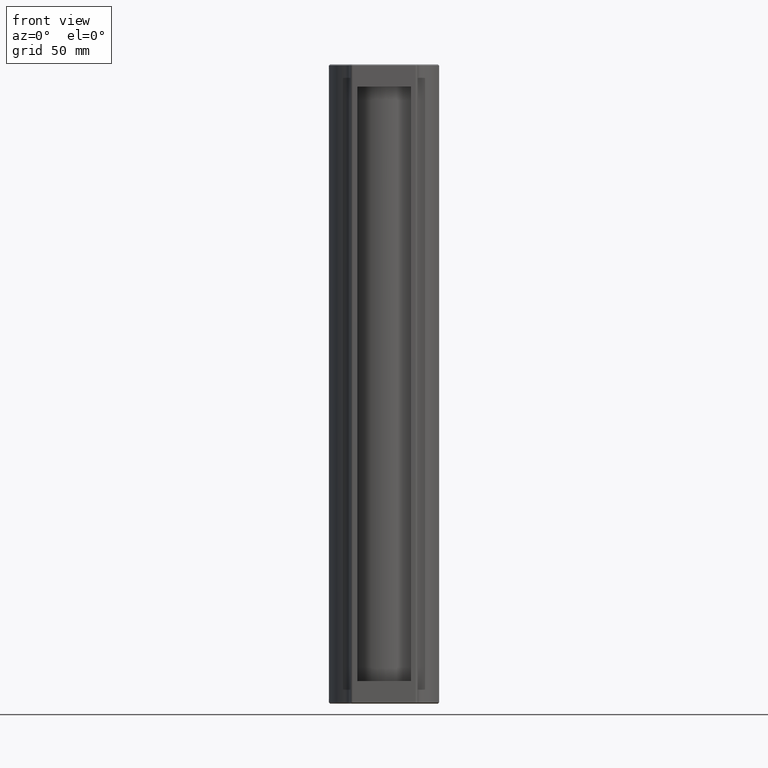
[diagram: clean part render]
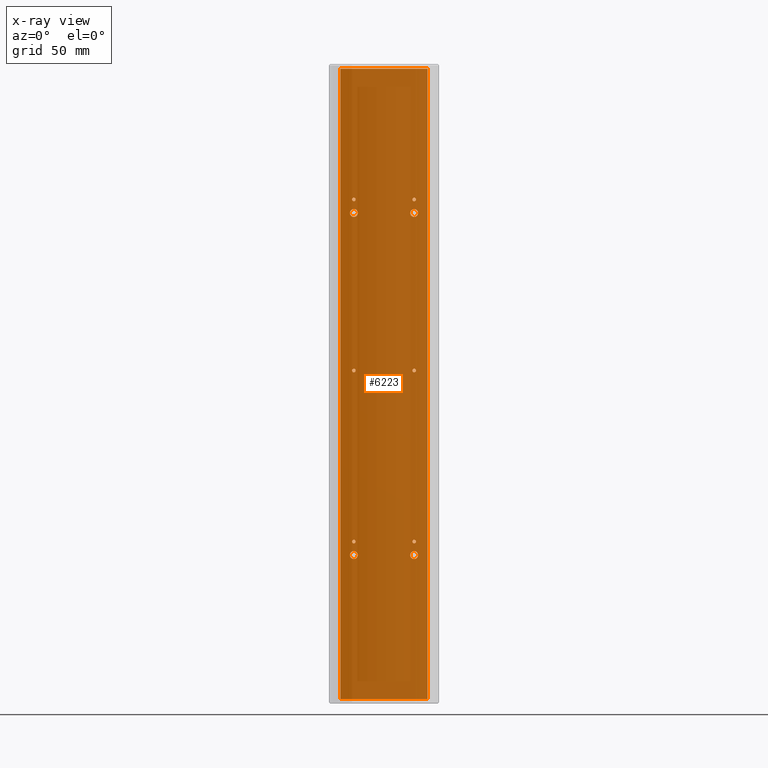
[diagram: x-ray — body ghosted, one internal face saturated and labeled with its STEP entity id]
A machine part, front view, then the same camera in x-ray: the body is ghosted and one INTERNAL B-rep face — a face not visible from any outside direction — is saturated and labeled: STEP entity #6223.
In plain terms, the highlighted planar face has unit normal (-0, 1, 0).
Its self-contained STEP definition (entity closure, byte-faithful):
#141 = FACE_BOUND ( 'NONE', #91753, .T. ) ;
#426 = CARTESIAN_POINT ( 'NONE',  ( -50.96201180637547900, -2.995475796930338500, -70.85000000000000900 ) ) ;
#571 = DIRECTION ( 'NONE',  ( 0.0000000000000000000, 0.0000000000000000000, -1.000000000000000000 ) ) ;
#1622 = LINE ( 'NONE', #73058, #81939 ) ;
#2283 = CARTESIAN_POINT ( 'NONE',  ( -24.16201180637542800, -2.995475796930334900, -70.04999999999999700 ) ) ;
#2531 = CARTESIAN_POINT ( 'NONE',  ( -24.16201180637542800, -2.995475796930334900, 81.94999999999998900 ) ) ;
#2987 = AXIS2_PLACEMENT_3D ( 'NONE', #2283, #10933, #571 ) ;
#3924 = DIRECTION ( 'NONE',  ( -0.0000000000000000000, -1.000000000000000000, -0.0000000000000000000 ) ) ;
#4747 = VERTEX_POINT ( 'NONE', #59614 ) ;
#4816 = VECTOR ( 'NONE', #17768, 1000.000000000000000 ) ;
#5816 = DIRECTION ( 'NONE',  ( -0.0000000000000000000, -1.000000000000000000, -0.0000000000000000000 ) ) ;
#6223 = ADVANCED_FACE ( 'NONE', ( #61939, #141, #102123, #71159, #35761, #88107, #9443, #81956, #105256, #78835, #10895 ), #71810, .F. ) ;
#6225 = AXIS2_PLACEMENT_3D ( 'NONE', #59053, #78847, #19862 ) ;
#7420 = EDGE_CURVE ( 'NONE', #9706, #50380, #57792, .T. ) ;
#7870 = DIRECTION ( 'NONE',  ( 0.0000000000000000000, 0.0000000000000000000, -1.000000000000000000 ) ) ;
#8218 = CIRCLE ( 'NONE', #26303, 0.7999999999999951600 ) ;
#8937 = CARTESIAN_POINT ( 'NONE',  ( -24.16201180637542800, -2.995475796930334900, -69.25000000000000000 ) ) ;
#8946 = DIRECTION ( 'NONE',  ( 1.000000000000000000, 1.269309860470834700E-016, -0.0000000000000000000 ) ) ;
#9135 = CIRCLE ( 'NONE', #43001, 0.7999999999999942700 ) ;
#9281 = DIRECTION ( 'NONE',  ( -0.0000000000000000000, -1.000000000000000000, -0.0000000000000000000 ) ) ;
#9443 = FACE_BOUND ( 'NONE', #30691, .T. ) ;
#9476 = VERTEX_POINT ( 'NONE', #94864 ) ;
#9706 = VERTEX_POINT ( 'NONE', #101298 ) ;
#9708 = CARTESIAN_POINT ( 'NONE',  ( -24.16201180637542800, -2.995475796930334900, 5.949999999999994800 ) ) ;
#10033 = AXIS2_PLACEMENT_3D ( 'NONE', #33296, #82794, #23759 ) ;
#10661 = VERTEX_POINT ( 'NONE', #110847 ) ;
#10895 = FACE_BOUND ( 'NONE', #29591, .T. ) ;
#10933 = DIRECTION ( 'NONE',  ( -0.0000000000000000000, -1.000000000000000000, -0.0000000000000000000 ) ) ;
#11603 = CARTESIAN_POINT ( 'NONE',  ( -50.96201180637547900, -2.995475796930338500, 82.74999999999997200 ) ) ;
#11947 = DIRECTION ( 'NONE',  ( -1.000000000000000000, -1.269309860470834700E-016, 0.0000000000000000000 ) ) ;
#13668 = LINE ( 'NONE', #58140, #78411 ) ;
#15491 = VERTEX_POINT ( 'NONE', #97986 ) ;
#15527 = CARTESIAN_POINT ( 'NONE',  ( -18.16201180637543900, -2.995475796930334900, -140.0000000000000000 ) ) ;
#15648 = LINE ( 'NONE', #56943, #4816 ) ;
#16748 = EDGE_CURVE ( 'NONE', #10661, #118622, #65332, .T. ) ;
#17219 = CARTESIAN_POINT ( 'NONE',  ( -24.16201180637543200, -2.995475796930334900, 77.69999999999997400 ) ) ;
#17747 = CARTESIAN_POINT ( 'NONE',  ( -24.16201180637543200, -2.995475796930334900, 75.94999999999998900 ) ) ;
#17768 = DIRECTION ( 'NONE',  ( -0.0000000000000000000, -0.0000000000000000000, -1.000000000000000000 ) ) ;
#19017 = CIRCLE ( 'NONE', #101379, 1.749999999999987600 ) ;
#19788 = EDGE_CURVE ( 'NONE', #35998, #15491, #91333, .T. ) ;
#19862 = DIRECTION ( 'NONE',  ( 0.0000000000000000000, 0.0000000000000000000, -1.000000000000000000 ) ) ;
#19983 = EDGE_CURVE ( 'NONE', #64183, #9476, #74199, .T. ) ;
#20051 = CARTESIAN_POINT ( 'NONE',  ( -24.16201180637542800, -2.995475796930334900, -76.05000000000001100 ) ) ;
#20164 = VERTEX_POINT ( 'NONE', #25806 ) ;
#20448 = DIRECTION ( 'NONE',  ( 0.0000000000000000000, 0.0000000000000000000, -1.000000000000000000 ) ) ;
#20850 = CIRCLE ( 'NONE', #25945, 0.7999999999999951600 ) ;
#21542 = CIRCLE ( 'NONE', #128278, 1.749999999999987600 ) ;
#23365 = CARTESIAN_POINT ( 'NONE',  ( -24.16201180637542800, -2.995475796930334900, 5.150000000000001200 ) ) ;
#23479 = ORIENTED_EDGE ( 'NONE', *, *, #107801, .F. ) ;
#23759 = DIRECTION ( 'NONE',  ( 0.0000000000000000000, 0.0000000000000000000, -1.000000000000000000 ) ) ;
#24720 = ORIENTED_EDGE ( 'NONE', *, *, #74832, .F. ) ;
#25806 = CARTESIAN_POINT ( 'NONE',  ( -50.96201180637545700, -2.995475796930338500, -77.80000000000001100 ) ) ;
#25807 = EDGE_CURVE ( 'NONE', #99699, #101210, #94220, .T. ) ;
#25945 = AXIS2_PLACEMENT_3D ( 'NONE', #111582, #33438, #63120 ) ;
#26065 = EDGE_CURVE ( 'NONE', #50634, #49053, #1622, .T. ) ;
#26303 = AXIS2_PLACEMENT_3D ( 'NONE', #49900, #49474, #89956 ) ;
#27225 = DIRECTION ( 'NONE',  ( -0.0000000000000000000, -1.000000000000000000, -0.0000000000000000000 ) ) ;
#28115 = DIRECTION ( 'NONE',  ( 0.0000000000000000000, 0.0000000000000000000, -1.000000000000000000 ) ) ;
#28276 = CARTESIAN_POINT ( 'NONE',  ( -50.96201180637547900, -2.995475796930338500, 5.949999999999985100 ) ) ;
#29431 = DIRECTION ( 'NONE',  ( -0.0000000000000000000, -1.000000000000000000, -0.0000000000000000000 ) ) ;
#29591 = EDGE_LOOP ( 'NONE', ( #95029, #24720 ) ) ;
#29673 = CARTESIAN_POINT ( 'NONE',  ( -24.16201180637542800, -2.995475796930334900, 6.749999999999989300 ) ) ;
#30169 = EDGE_CURVE ( 'NONE', #103465, #117454, #43980, .T. ) ;
#30691 = EDGE_LOOP ( 'NONE', ( #48873, #96576 ) ) ;
#31193 = EDGE_LOOP ( 'NONE', ( #92501, #96795 ) ) ;
#31534 = VERTEX_POINT ( 'NONE', #52583 ) ;
#32886 = DIRECTION ( 'NONE',  ( 0.0000000000000000000, 0.0000000000000000000, -1.000000000000000000 ) ) ;
#33296 = CARTESIAN_POINT ( 'NONE',  ( -24.16201180637542800, -2.995475796930334900, 5.949999999999994800 ) ) ;
#33438 = DIRECTION ( 'NONE',  ( -0.0000000000000000000, -1.000000000000000000, -0.0000000000000000000 ) ) ;
#33679 = ORIENTED_EDGE ( 'NONE', *, *, #102572, .F. ) ;
#33739 = DIRECTION ( 'NONE',  ( 0.0000000000000000000, 0.0000000000000000000, -1.000000000000000000 ) ) ;
#34565 = CARTESIAN_POINT ( 'NONE',  ( -56.96201180637545000, -2.995475796930337600, -140.0000000000000000 ) ) ;
#34783 = DIRECTION ( 'NONE',  ( 0.0000000000000000000, 0.0000000000000000000, -1.000000000000000000 ) ) ;
#34985 = ORIENTED_EDGE ( 'NONE', *, *, #109000, .F. ) ;
#35761 = FACE_BOUND ( 'NONE', #67240, .T. ) ;
#35782 = DIRECTION ( 'NONE',  ( 0.0000000000000000000, 0.0000000000000000000, -1.000000000000000000 ) ) ;
#35998 = VERTEX_POINT ( 'NONE', #17219 ) ;
#36043 = CIRCLE ( 'NONE', #10033, 0.7999999999999942700 ) ;
#36105 = DIRECTION ( 'NONE',  ( -0.0000000000000000000, -1.000000000000000000, -0.0000000000000000000 ) ) ;
#36354 = CARTESIAN_POINT ( 'NONE',  ( -24.16201180637542800, -2.995475796930334900, 81.94999999999998900 ) ) ;
#37170 = CIRCLE ( 'NONE', #120774, 0.7999999999999951600 ) ;
#37452 = ORIENTED_EDGE ( 'NONE', *, *, #30169, .F. ) ;
#38512 = ORIENTED_EDGE ( 'NONE', *, *, #123663, .F. ) ;
#39091 = DIRECTION ( 'NONE',  ( 0.0000000000000000000, 0.0000000000000000000, -1.000000000000000000 ) ) ;
#40759 = CARTESIAN_POINT ( 'NONE',  ( -24.16201180637542800, -2.995475796930334900, -74.30000000000002600 ) ) ;
#41311 = DIRECTION ( 'NONE',  ( -1.269309860470834700E-016, 1.000000000000000000, 0.0000000000000000000 ) ) ;
#43001 = AXIS2_PLACEMENT_3D ( 'NONE', #60690, #127270, #80031 ) ;
#43234 = AXIS2_PLACEMENT_3D ( 'NONE', #119916, #41311, #11947 ) ;
#43980 = CIRCLE ( 'NONE', #99062, 1.749999999999987600 ) ;
#46278 = EDGE_CURVE ( 'NONE', #118622, #10661, #19017, .T. ) ;
#46792 = EDGE_CURVE ( 'NONE', #31534, #95259, #55781, .T. ) ;
#47120 = CARTESIAN_POINT ( 'NONE',  ( -50.96201180637545700, -2.995475796930338500, 75.94999999999997400 ) ) ;
#48873 = ORIENTED_EDGE ( 'NONE', *, *, #74646, .F. ) ;
#48996 = EDGE_CURVE ( 'NONE', #103558, #88219, #36043, .T. ) ;
#49053 = VERTEX_POINT ( 'NONE', #34565 ) ;
#49474 = DIRECTION ( 'NONE',  ( -0.0000000000000000000, -1.000000000000000000, -0.0000000000000000000 ) ) ;
#49900 = CARTESIAN_POINT ( 'NONE',  ( -50.96201180637547900, -2.995475796930338500, 81.94999999999997400 ) ) ;
#50341 = EDGE_CURVE ( 'NONE', #71053, #76662, #90801, .T. ) ;
#50380 = VERTEX_POINT ( 'NONE', #426 ) ;
#50413 = DIRECTION ( 'NONE',  ( -0.0000000000000000000, -1.000000000000000000, -0.0000000000000000000 ) ) ;
#50456 = DIRECTION ( 'NONE',  ( 0.0000000000000000000, 0.0000000000000000000, -1.000000000000000000 ) ) ;
#50634 = VERTEX_POINT ( 'NONE', #15527 ) ;
#51334 = CIRCLE ( 'NONE', #2987, 0.7999999999999951600 ) ;
#51468 = VERTEX_POINT ( 'NONE', #110701 ) ;
#52155 = CARTESIAN_POINT ( 'NONE',  ( -18.16201180637543900, -2.995475796930333600, 140.0000000000000000 ) ) ;
#52583 = CARTESIAN_POINT ( 'NONE',  ( -50.96201180637547900, -2.995475796930338500, 6.749999999999978700 ) ) ;
#52933 = EDGE_LOOP ( 'NONE', ( #37452, #60568 ) ) ;
#53866 = AXIS2_PLACEMENT_3D ( 'NONE', #47120, #66141, #7870 ) ;
#55581 = CARTESIAN_POINT ( 'NONE',  ( -50.96201180637547900, -2.995475796930338500, -70.05000000000001100 ) ) ;
#55781 = CIRCLE ( 'NONE', #77441, 0.7999999999999942700 ) ;
#56137 = DIRECTION ( 'NONE',  ( 0.0000000000000000000, 0.0000000000000000000, -1.000000000000000000 ) ) ;
#56753 = ORIENTED_EDGE ( 'NONE', *, *, #85835, .F. ) ;
#56943 = CARTESIAN_POINT ( 'NONE',  ( -18.16201180637543900, -2.995475796930332700, 140.0000000000000000 ) ) ;
#57792 = CIRCLE ( 'NONE', #87142, 0.7999999999999951600 ) ;
#58140 = CARTESIAN_POINT ( 'NONE',  ( -56.96201180637545000, -2.995475796930337600, 140.0000000000000000 ) ) ;
#59053 = CARTESIAN_POINT ( 'NONE',  ( -24.16201180637543200, -2.995475796930334900, 75.94999999999998900 ) ) ;
#59614 = CARTESIAN_POINT ( 'NONE',  ( -24.16201180637542800, -2.995475796930334900, 82.74999999999998600 ) ) ;
#60017 = ORIENTED_EDGE ( 'NONE', *, *, #19788, .F. ) ;
#60027 = VERTEX_POINT ( 'NONE', #100717 ) ;
#60568 = ORIENTED_EDGE ( 'NONE', *, *, #71486, .F. ) ;
#60690 = CARTESIAN_POINT ( 'NONE',  ( -50.96201180637547900, -2.995475796930338500, 5.949999999999985100 ) ) ;
#61814 = CIRCLE ( 'NONE', #70409, 1.749999999999987600 ) ;
#61939 = FACE_OUTER_BOUND ( 'NONE', #69773, .T. ) ;
#62987 = CARTESIAN_POINT ( 'NONE',  ( -50.96201180637545700, -2.995475796930338500, -76.05000000000002600 ) ) ;
#63120 = DIRECTION ( 'NONE',  ( 0.0000000000000000000, 0.0000000000000000000, -1.000000000000000000 ) ) ;
#63417 = DIRECTION ( 'NONE',  ( -0.0000000000000000000, -1.000000000000000000, -0.0000000000000000000 ) ) ;
#64183 = VERTEX_POINT ( 'NONE', #11603 ) ;
#64920 = VECTOR ( 'NONE', #8946, 1000.000000000000000 ) ;
#65332 = CIRCLE ( 'NONE', #53866, 1.749999999999987600 ) ;
#66141 = DIRECTION ( 'NONE',  ( -0.0000000000000000000, -1.000000000000000000, -0.0000000000000000000 ) ) ;
#66707 = CIRCLE ( 'NONE', #127132, 1.749999999999987600 ) ;
#67153 = EDGE_LOOP ( 'NONE', ( #86220, #84835 ) ) ;
#67240 = EDGE_LOOP ( 'NONE', ( #33679, #60017 ) ) ;
#69560 = AXIS2_PLACEMENT_3D ( 'NONE', #9708, #9281, #39091 ) ;
#69773 = EDGE_LOOP ( 'NONE', ( #87342, #34985, #94712, #38512 ) ) ;
#70246 = EDGE_CURVE ( 'NONE', #9476, #64183, #8218, .T. ) ;
#70409 = AXIS2_PLACEMENT_3D ( 'NONE', #73260, #3924, #33739 ) ;
#71053 = VERTEX_POINT ( 'NONE', #8937 ) ;
#71159 = FACE_BOUND ( 'NONE', #67153, .T. ) ;
#71230 = CIRCLE ( 'NONE', #6225, 1.749999999999987600 ) ;
#71486 = EDGE_CURVE ( 'NONE', #117454, #103465, #21542, .T. ) ;
#71810 = PLANE ( 'NONE',  #43234 ) ;
#73058 = CARTESIAN_POINT ( 'NONE',  ( -37.56201180637544500, -2.995475796930337600, -140.0000000000000000 ) ) ;
#73260 = CARTESIAN_POINT ( 'NONE',  ( -50.96201180637545700, -2.995475796930338500, -76.05000000000002600 ) ) ;
#74199 = CIRCLE ( 'NONE', #108205, 0.7999999999999951600 ) ;
#74488 = DIRECTION ( 'NONE',  ( -0.0000000000000000000, -1.000000000000000000, -0.0000000000000000000 ) ) ;
#74646 = EDGE_CURVE ( 'NONE', #76662, #71053, #51334, .T. ) ;
#74832 = EDGE_CURVE ( 'NONE', #4747, #51468, #88140, .T. ) ;
#76222 = CARTESIAN_POINT ( 'NONE',  ( -56.96201180637545000, -2.995475796930337600, 140.0000000000000000 ) ) ;
#76662 = VERTEX_POINT ( 'NONE', #113019 ) ;
#77441 = AXIS2_PLACEMENT_3D ( 'NONE', #28276, #36105, #105174 ) ;
#78411 = VECTOR ( 'NONE', #87838, 1000.000000000000000 ) ;
#78835 = FACE_BOUND ( 'NONE', #123334, .T. ) ;
#78847 = DIRECTION ( 'NONE',  ( -0.0000000000000000000, -1.000000000000000000, -0.0000000000000000000 ) ) ;
#78880 = DIRECTION ( 'NONE',  ( -0.0000000000000000000, -1.000000000000000000, -0.0000000000000000000 ) ) ;
#78962 = CARTESIAN_POINT ( 'NONE',  ( -24.16201180637542800, -2.995475796930334900, -77.79999999999999700 ) ) ;
#80031 = DIRECTION ( 'NONE',  ( 0.0000000000000000000, 0.0000000000000000000, -1.000000000000000000 ) ) ;
#80593 = ORIENTED_EDGE ( 'NONE', *, *, #70246, .F. ) ;
#80596 = AXIS2_PLACEMENT_3D ( 'NONE', #36354, #117027, #56137 ) ;
#81446 = DIRECTION ( 'NONE',  ( 0.0000000000000000000, 0.0000000000000000000, -1.000000000000000000 ) ) ;
#81479 = EDGE_CURVE ( 'NONE', #50380, #9706, #20850, .T. ) ;
#81760 = DIRECTION ( 'NONE',  ( -1.000000000000000000, -0.0000000000000000000, -0.0000000000000000000 ) ) ;
#81859 = DIRECTION ( 'NONE',  ( -0.0000000000000000000, -1.000000000000000000, -0.0000000000000000000 ) ) ;
#81939 = VECTOR ( 'NONE', #81760, 1000.000000000000000 ) ;
#81956 = FACE_BOUND ( 'NONE', #31193, .T. ) ;
#82794 = DIRECTION ( 'NONE',  ( -0.0000000000000000000, -1.000000000000000000, -0.0000000000000000000 ) ) ;
#84835 = ORIENTED_EDGE ( 'NONE', *, *, #16748, .F. ) ;
#85835 = EDGE_CURVE ( 'NONE', #20164, #60027, #61814, .T. ) ;
#86220 = ORIENTED_EDGE ( 'NONE', *, *, #46278, .F. ) ;
#87142 = AXIS2_PLACEMENT_3D ( 'NONE', #55581, #74488, #35782 ) ;
#87342 = ORIENTED_EDGE ( 'NONE', *, *, #25807, .F. ) ;
#87838 = DIRECTION ( 'NONE',  ( 0.0000000000000000000, 0.0000000000000000000, 1.000000000000000000 ) ) ;
#88107 = FACE_BOUND ( 'NONE', #111047, .T. ) ;
#88140 = CIRCLE ( 'NONE', #80596, 0.7999999999999951600 ) ;
#88219 = VERTEX_POINT ( 'NONE', #29673 ) ;
#88250 = CARTESIAN_POINT ( 'NONE',  ( -37.56201180637544500, -2.995475796930334900, 140.0000000000000000 ) ) ;
#88372 = CARTESIAN_POINT ( 'NONE',  ( -24.16201180637542800, -2.995475796930334900, -70.04999999999999700 ) ) ;
#88793 = AXIS2_PLACEMENT_3D ( 'NONE', #88372, #29431, #28115 ) ;
#89591 = CARTESIAN_POINT ( 'NONE',  ( -50.96201180637547900, -2.995475796930338500, 81.94999999999997400 ) ) ;
#89956 = DIRECTION ( 'NONE',  ( 0.0000000000000000000, 0.0000000000000000000, -1.000000000000000000 ) ) ;
#89981 = ORIENTED_EDGE ( 'NONE', *, *, #46792, .F. ) ;
#90801 = CIRCLE ( 'NONE', #88793, 0.7999999999999951600 ) ;
#91333 = CIRCLE ( 'NONE', #110700, 1.749999999999987600 ) ;
#91753 = EDGE_LOOP ( 'NONE', ( #56753, #23479 ) ) ;
#92501 = ORIENTED_EDGE ( 'NONE', *, *, #48996, .F. ) ;
#94220 = LINE ( 'NONE', #88250, #64920 ) ;
#94712 = ORIENTED_EDGE ( 'NONE', *, *, #26065, .F. ) ;
#94864 = CARTESIAN_POINT ( 'NONE',  ( -50.96201180637547900, -2.995475796930338500, 81.14999999999999100 ) ) ;
#95029 = ORIENTED_EDGE ( 'NONE', *, *, #124033, .F. ) ;
#95259 = VERTEX_POINT ( 'NONE', #122166 ) ;
#96576 = ORIENTED_EDGE ( 'NONE', *, *, #50341, .F. ) ;
#96795 = ORIENTED_EDGE ( 'NONE', *, *, #120090, .F. ) ;
#97986 = CARTESIAN_POINT ( 'NONE',  ( -24.16201180637543200, -2.995475796930334900, 74.20000000000000300 ) ) ;
#99062 = AXIS2_PLACEMENT_3D ( 'NONE', #105125, #5816, #34783 ) ;
#99699 = VERTEX_POINT ( 'NONE', #76222 ) ;
#100717 = CARTESIAN_POINT ( 'NONE',  ( -50.96201180637545700, -2.995475796930338500, -74.30000000000004000 ) ) ;
#100918 = DIRECTION ( 'NONE',  ( 0.0000000000000000000, 0.0000000000000000000, -1.000000000000000000 ) ) ;
#101210 = VERTEX_POINT ( 'NONE', #52155 ) ;
#101298 = CARTESIAN_POINT ( 'NONE',  ( -50.96201180637547900, -2.995475796930338500, -69.25000000000001400 ) ) ;
#101379 = AXIS2_PLACEMENT_3D ( 'NONE', #118303, #78880, #50456 ) ;
#101675 = CARTESIAN_POINT ( 'NONE',  ( -50.96201180637545700, -2.995475796930338500, 74.19999999999998900 ) ) ;
#102123 = FACE_BOUND ( 'NONE', #52933, .T. ) ;
#102236 = ORIENTED_EDGE ( 'NONE', *, *, #19983, .F. ) ;
#102572 = EDGE_CURVE ( 'NONE', #15491, #35998, #71230, .T. ) ;
#103465 = VERTEX_POINT ( 'NONE', #78962 ) ;
#103558 = VERTEX_POINT ( 'NONE', #23365 ) ;
#105125 = CARTESIAN_POINT ( 'NONE',  ( -24.16201180637542800, -2.995475796930334900, -76.05000000000001100 ) ) ;
#105174 = DIRECTION ( 'NONE',  ( 0.0000000000000000000, 0.0000000000000000000, -1.000000000000000000 ) ) ;
#105256 = FACE_BOUND ( 'NONE', #120608, .T. ) ;
#107801 = EDGE_CURVE ( 'NONE', #60027, #20164, #66707, .T. ) ;
#108200 = ORIENTED_EDGE ( 'NONE', *, *, #124427, .F. ) ;
#108205 = AXIS2_PLACEMENT_3D ( 'NONE', #89591, #50413, #100918 ) ;
#109000 = EDGE_CURVE ( 'NONE', #49053, #99699, #13668, .T. ) ;
#110700 = AXIS2_PLACEMENT_3D ( 'NONE', #17747, #27225, #115294 ) ;
#110701 = CARTESIAN_POINT ( 'NONE',  ( -24.16201180637542800, -2.995475796930334900, 81.15000000000000600 ) ) ;
#110847 = CARTESIAN_POINT ( 'NONE',  ( -50.96201180637545700, -2.995475796930338500, 77.69999999999996000 ) ) ;
#111047 = EDGE_LOOP ( 'NONE', ( #127761, #111469 ) ) ;
#111469 = ORIENTED_EDGE ( 'NONE', *, *, #7420, .F. ) ;
#111582 = CARTESIAN_POINT ( 'NONE',  ( -50.96201180637547900, -2.995475796930338500, -70.05000000000001100 ) ) ;
#113019 = CARTESIAN_POINT ( 'NONE',  ( -24.16201180637542800, -2.995475796930334900, -70.84999999999999400 ) ) ;
#115294 = DIRECTION ( 'NONE',  ( 0.0000000000000000000, 0.0000000000000000000, -1.000000000000000000 ) ) ;
#117027 = DIRECTION ( 'NONE',  ( -0.0000000000000000000, -1.000000000000000000, -0.0000000000000000000 ) ) ;
#117454 = VERTEX_POINT ( 'NONE', #40759 ) ;
#118303 = CARTESIAN_POINT ( 'NONE',  ( -50.96201180637545700, -2.995475796930338500, 75.94999999999997400 ) ) ;
#118622 = VERTEX_POINT ( 'NONE', #101675 ) ;
#118889 = DIRECTION ( 'NONE',  ( -0.0000000000000000000, -1.000000000000000000, -0.0000000000000000000 ) ) ;
#119916 = CARTESIAN_POINT ( 'NONE',  ( -37.56201180637544500, -2.995475796930334900, 140.0000000000000000 ) ) ;
#120090 = EDGE_CURVE ( 'NONE', #88219, #103558, #120734, .T. ) ;
#120608 = EDGE_LOOP ( 'NONE', ( #108200, #89981 ) ) ;
#120734 = CIRCLE ( 'NONE', #69560, 0.7999999999999942700 ) ;
#120774 = AXIS2_PLACEMENT_3D ( 'NONE', #2531, #81859, #81446 ) ;
#122166 = CARTESIAN_POINT ( 'NONE',  ( -50.96201180637547900, -2.995475796930338500, 5.149999999999990600 ) ) ;
#123334 = EDGE_LOOP ( 'NONE', ( #80593, #102236 ) ) ;
#123663 = EDGE_CURVE ( 'NONE', #101210, #50634, #15648, .T. ) ;
#124033 = EDGE_CURVE ( 'NONE', #51468, #4747, #37170, .T. ) ;
#124427 = EDGE_CURVE ( 'NONE', #95259, #31534, #9135, .T. ) ;
#127132 = AXIS2_PLACEMENT_3D ( 'NONE', #62987, #63417, #32886 ) ;
#127270 = DIRECTION ( 'NONE',  ( -0.0000000000000000000, -1.000000000000000000, -0.0000000000000000000 ) ) ;
#127761 = ORIENTED_EDGE ( 'NONE', *, *, #81479, .F. ) ;
#128278 = AXIS2_PLACEMENT_3D ( 'NONE', #20051, #118889, #20448 ) ;